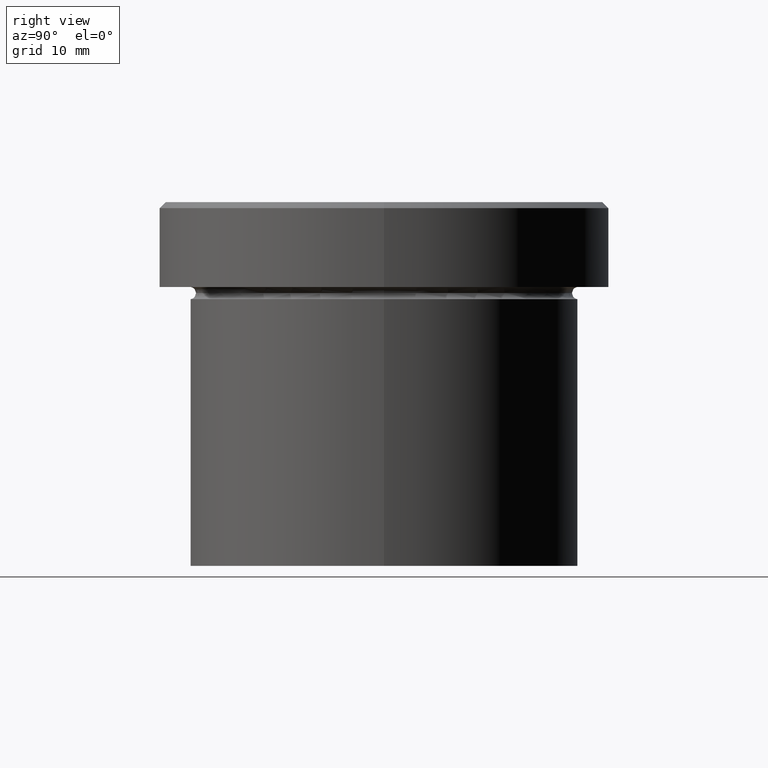
[diagram: clean part render]
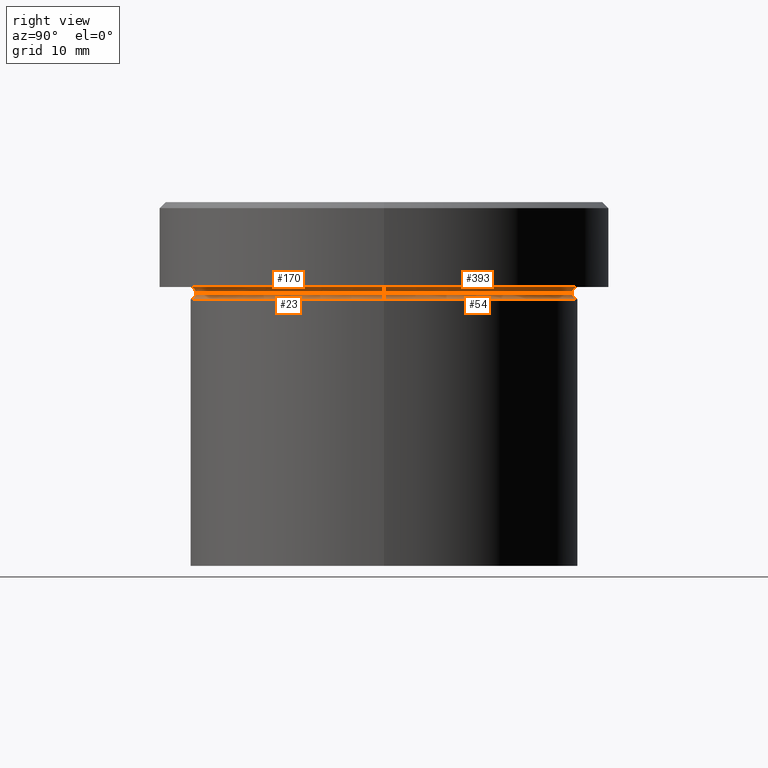
[diagram: same view with one multi-face feature highlighted, each face labeled with its STEP entity id]
A machine part, right view. The highlighted faces form ONE feature: a constant-radius fillet chain: 4 tangent blend faces with common blend radius 0.5 mm. The faces share edges in the B-rep.
Their STEP definitions:
[1] entity #393 (Torus):
#13 = DIRECTION ( 'NONE',  ( 1.000000000000000000, 0.000000000000000000, 0.000000000000000000 ) ) ;
#24 = VERTEX_POINT ( 'NONE', #344 ) ;
#42 = DIRECTION ( 'NONE',  ( -0.000000000000000000, -0.000000000000000000, 1.000000000000000000 ) ) ;
#50 = VERTEX_POINT ( 'NONE', #378 ) ;
#51 = EDGE_CURVE ( 'NONE', #24, #50, #219, .T. ) ;
#52 = CARTESIAN_POINT ( 'NONE',  ( 0.000000000000000000, 0.000000000000000000, -7.500000000000000000 ) ) ;
#55 = CIRCLE ( 'NONE', #282, 16.00000000000000000 ) ;
#71 = TOROIDAL_SURFACE ( 'NONE', #87, 16.00000000000000000, 0.5000000000000000000 ) ;
#86 = AXIS2_PLACEMENT_3D ( 'NONE', #161, #134, #376 ) ;
#87 = AXIS2_PLACEMENT_3D ( 'NONE', #52, #98, #123 ) ;
#98 = DIRECTION ( 'NONE',  ( 0.000000000000000000, 0.000000000000000000, -1.000000000000000000 ) ) ;
#107 = VERTEX_POINT ( 'NONE', #132 ) ;
#116 = CARTESIAN_POINT ( 'NONE',  ( 16.00000000000000000, 1.959434878635765131E-15, -7.500000000000000000 ) ) ;
#123 = DIRECTION ( 'NONE',  ( -1.000000000000000000, 0.000000000000000000, 0.000000000000000000 ) ) ;
#132 = CARTESIAN_POINT ( 'NONE',  ( 16.00000000000000000, 1.959434878635765131E-15, -6.999999999999999112 ) ) ;
#134 = DIRECTION ( 'NONE',  ( -0.000000000000000000, -1.000000000000000000, -0.000000000000000000 ) ) ;
#136 = CIRCLE ( 'NONE', #379, 15.50000000000000000 ) ;
#161 = CARTESIAN_POINT ( 'NONE',  ( -16.00000000000000000, 0.000000000000000000, -7.500000000000000000 ) ) ;
#195 = DIRECTION ( 'NONE',  ( -1.224646799147353207E-16, 1.000000000000000000, 0.000000000000000000 ) ) ;
#204 = AXIS2_PLACEMENT_3D ( 'NONE', #116, #195, #288 ) ;
#205 = ORIENTED_EDGE ( 'NONE', *, *, #298, .F. ) ;
#206 = ORIENTED_EDGE ( 'NONE', *, *, #273, .T. ) ;
#214 = FACE_OUTER_BOUND ( 'NONE', #368, .T. ) ;
#219 = CIRCLE ( 'NONE', #86, 0.5000000000000004441 ) ;
#226 = DIRECTION ( 'NONE',  ( -0.000000000000000000, -0.000000000000000000, 1.000000000000000000 ) ) ;
#258 = CARTESIAN_POINT ( 'NONE',  ( 0.000000000000000000, 0.000000000000000000, -7.500000000000000000 ) ) ;
#259 = ORIENTED_EDGE ( 'NONE', *, *, #305, .F. ) ;
#262 = DIRECTION ( 'NONE',  ( -1.000000000000000000, 0.000000000000000000, 0.000000000000000000 ) ) ;
#273 = EDGE_CURVE ( 'NONE', #325, #24, #136, .T. ) ;
#282 = AXIS2_PLACEMENT_3D ( 'NONE', #361, #226, #262 ) ;
#288 = DIRECTION ( 'NONE',  ( -1.000000000000000000, -1.224646799147349509E-16, 0.000000000000000000 ) ) ;
#298 = EDGE_CURVE ( 'NONE', #107, #50, #55, .T. ) ;
#305 = EDGE_CURVE ( 'NONE', #325, #107, #347, .T. ) ;
#325 = VERTEX_POINT ( 'NONE', #356 ) ;
#344 = CARTESIAN_POINT ( 'NONE',  ( -15.50000000000000000, 1.928818708657081344E-15, -7.500000000000000000 ) ) ;
#347 = CIRCLE ( 'NONE', #204, 0.5000000000000004441 ) ;
#356 = CARTESIAN_POINT ( 'NONE',  ( 15.50000000000000000, 0.000000000000000000, -7.500000000000000000 ) ) ;
#361 = CARTESIAN_POINT ( 'NONE',  ( 0.000000000000000000, 0.000000000000000000, -6.999999999999999112 ) ) ;
#368 = EDGE_LOOP ( 'NONE', ( #259, #206, #395, #205 ) ) ;
#376 = DIRECTION ( 'NONE',  ( 0.000000000000000000, 0.000000000000000000, -1.000000000000000000 ) ) ;
#378 = CARTESIAN_POINT ( 'NONE',  ( -16.00000000000000000, 0.000000000000000000, -6.999999999999999112 ) ) ;
#379 = AXIS2_PLACEMENT_3D ( 'NONE', #258, #42, #13 ) ;
#393 = ADVANCED_FACE ( 'NONE', ( #214 ), #71, .F. ) ;
#395 = ORIENTED_EDGE ( 'NONE', *, *, #51, .T. ) ;
[2] entity #54 (Torus):
#8 = DIRECTION ( 'NONE',  ( 0.000000000000000000, 0.000000000000000000, -1.000000000000000000 ) ) ;
#13 = DIRECTION ( 'NONE',  ( 1.000000000000000000, 0.000000000000000000, 0.000000000000000000 ) ) ;
#24 = VERTEX_POINT ( 'NONE', #344 ) ;
#28 = FACE_OUTER_BOUND ( 'NONE', #392, .T. ) ;
#31 = DIRECTION ( 'NONE',  ( 1.000000000000000000, 0.000000000000000000, 0.000000000000000000 ) ) ;
#38 = CIRCLE ( 'NONE', #236, 0.5000000000000004441 ) ;
#42 = DIRECTION ( 'NONE',  ( -0.000000000000000000, -0.000000000000000000, 1.000000000000000000 ) ) ;
#44 = CARTESIAN_POINT ( 'NONE',  ( -16.00000000000000000, 1.959434878635765131E-15, -7.500000000000000000 ) ) ;
#54 = ADVANCED_FACE ( 'NONE', ( #28 ), #210, .F. ) ;
#77 = AXIS2_PLACEMENT_3D ( 'NONE', #44, #151, #391 ) ;
#78 = CIRCLE ( 'NONE', #112, 16.00000000000000000 ) ;
#92 = ORIENTED_EDGE ( 'NONE', *, *, #319, .T. ) ;
#112 = AXIS2_PLACEMENT_3D ( 'NONE', #260, #290, #321 ) ;
#114 = CARTESIAN_POINT ( 'NONE',  ( 16.00000000000000000, 0.000000000000000000, -7.500000000000000000 ) ) ;
#117 = ORIENTED_EDGE ( 'NONE', *, *, #273, .F. ) ;
#136 = CIRCLE ( 'NONE', #379, 15.50000000000000000 ) ;
#151 = DIRECTION ( 'NONE',  ( 1.224646799147353207E-16, 1.000000000000000000, 0.000000000000000000 ) ) ;
#156 = VERTEX_POINT ( 'NONE', #163 ) ;
#163 = CARTESIAN_POINT ( 'NONE',  ( 16.00000000000000000, 0.000000000000000000, -8.000000000000000000 ) ) ;
#182 = EDGE_CURVE ( 'NONE', #325, #156, #38, .T. ) ;
#210 = TOROIDAL_SURFACE ( 'NONE', #280, 16.00000000000000000, 0.5000000000000000000 ) ;
#215 = EDGE_CURVE ( 'NONE', #24, #270, #251, .T. ) ;
#236 = AXIS2_PLACEMENT_3D ( 'NONE', #114, #324, #8 ) ;
#242 = DIRECTION ( 'NONE',  ( -0.000000000000000000, -0.000000000000000000, 1.000000000000000000 ) ) ;
#251 = CIRCLE ( 'NONE', #77, 0.5000000000000004441 ) ;
#258 = CARTESIAN_POINT ( 'NONE',  ( 0.000000000000000000, 0.000000000000000000, -7.500000000000000000 ) ) ;
#260 = CARTESIAN_POINT ( 'NONE',  ( 0.000000000000000000, 0.000000000000000000, -8.000000000000000000 ) ) ;
#270 = VERTEX_POINT ( 'NONE', #327 ) ;
#273 = EDGE_CURVE ( 'NONE', #325, #24, #136, .T. ) ;
#280 = AXIS2_PLACEMENT_3D ( 'NONE', #406, #242, #31 ) ;
#290 = DIRECTION ( 'NONE',  ( -0.000000000000000000, -0.000000000000000000, 1.000000000000000000 ) ) ;
#319 = EDGE_CURVE ( 'NONE', #156, #270, #78, .T. ) ;
#321 = DIRECTION ( 'NONE',  ( 1.000000000000000000, 0.000000000000000000, 0.000000000000000000 ) ) ;
#324 = DIRECTION ( 'NONE',  ( 0.000000000000000000, -1.000000000000000000, 0.000000000000000000 ) ) ;
#325 = VERTEX_POINT ( 'NONE', #356 ) ;
#327 = CARTESIAN_POINT ( 'NONE',  ( -16.00000000000000000, 1.959434878635765131E-15, -8.000000000000000000 ) ) ;
#334 = ORIENTED_EDGE ( 'NONE', *, *, #215, .F. ) ;
#344 = CARTESIAN_POINT ( 'NONE',  ( -15.50000000000000000, 1.928818708657081344E-15, -7.500000000000000000 ) ) ;
#356 = CARTESIAN_POINT ( 'NONE',  ( 15.50000000000000000, 0.000000000000000000, -7.500000000000000000 ) ) ;
#379 = AXIS2_PLACEMENT_3D ( 'NONE', #258, #42, #13 ) ;
#388 = ORIENTED_EDGE ( 'NONE', *, *, #182, .T. ) ;
#391 = DIRECTION ( 'NONE',  ( -1.000000000000000000, 1.224646799147349509E-16, 0.000000000000000000 ) ) ;
#392 = EDGE_LOOP ( 'NONE', ( #334, #117, #388, #92 ) ) ;
#406 = CARTESIAN_POINT ( 'NONE',  ( 0.000000000000000000, 0.000000000000000000, -7.500000000000000000 ) ) ;
[3] entity #23 (Torus):
#8 = DIRECTION ( 'NONE',  ( 0.000000000000000000, 0.000000000000000000, -1.000000000000000000 ) ) ;
#10 = AXIS2_PLACEMENT_3D ( 'NONE', #164, #64, #68 ) ;
#11 = EDGE_CURVE ( 'NONE', #24, #325, #162, .T. ) ;
#23 = ADVANCED_FACE ( 'NONE', ( #94 ), #95, .F. ) ;
#24 = VERTEX_POINT ( 'NONE', #344 ) ;
#38 = CIRCLE ( 'NONE', #236, 0.5000000000000004441 ) ;
#44 = CARTESIAN_POINT ( 'NONE',  ( -16.00000000000000000, 1.959434878635765131E-15, -7.500000000000000000 ) ) ;
#53 = ORIENTED_EDGE ( 'NONE', *, *, #182, .F. ) ;
#64 = DIRECTION ( 'NONE',  ( -0.000000000000000000, -0.000000000000000000, 1.000000000000000000 ) ) ;
#68 = DIRECTION ( 'NONE',  ( 1.000000000000000000, 0.000000000000000000, 0.000000000000000000 ) ) ;
#77 = AXIS2_PLACEMENT_3D ( 'NONE', #44, #151, #391 ) ;
#81 = CARTESIAN_POINT ( 'NONE',  ( 0.000000000000000000, 0.000000000000000000, -7.500000000000000000 ) ) ;
#84 = CARTESIAN_POINT ( 'NONE',  ( 0.000000000000000000, 0.000000000000000000, -8.000000000000000000 ) ) ;
#94 = FACE_OUTER_BOUND ( 'NONE', #124, .T. ) ;
#95 = TOROIDAL_SURFACE ( 'NONE', #10, 16.00000000000000000, 0.5000000000000000000 ) ;
#111 = DIRECTION ( 'NONE',  ( -0.000000000000000000, -0.000000000000000000, 1.000000000000000000 ) ) ;
#114 = CARTESIAN_POINT ( 'NONE',  ( 16.00000000000000000, 0.000000000000000000, -7.500000000000000000 ) ) ;
#124 = EDGE_LOOP ( 'NONE', ( #335, #291, #207, #53 ) ) ;
#151 = DIRECTION ( 'NONE',  ( 1.224646799147353207E-16, 1.000000000000000000, 0.000000000000000000 ) ) ;
#154 = DIRECTION ( 'NONE',  ( 1.000000000000000000, 0.000000000000000000, 0.000000000000000000 ) ) ;
#156 = VERTEX_POINT ( 'NONE', #163 ) ;
#162 = CIRCLE ( 'NONE', #341, 15.50000000000000000 ) ;
#163 = CARTESIAN_POINT ( 'NONE',  ( 16.00000000000000000, 0.000000000000000000, -8.000000000000000000 ) ) ;
#164 = CARTESIAN_POINT ( 'NONE',  ( 0.000000000000000000, 0.000000000000000000, -7.500000000000000000 ) ) ;
#171 = DIRECTION ( 'NONE',  ( 1.000000000000000000, 0.000000000000000000, 0.000000000000000000 ) ) ;
#174 = CIRCLE ( 'NONE', #405, 16.00000000000000000 ) ;
#182 = EDGE_CURVE ( 'NONE', #325, #156, #38, .T. ) ;
#207 = ORIENTED_EDGE ( 'NONE', *, *, #314, .T. ) ;
#215 = EDGE_CURVE ( 'NONE', #24, #270, #251, .T. ) ;
#236 = AXIS2_PLACEMENT_3D ( 'NONE', #114, #324, #8 ) ;
#251 = CIRCLE ( 'NONE', #77, 0.5000000000000004441 ) ;
#263 = DIRECTION ( 'NONE',  ( -0.000000000000000000, -0.000000000000000000, 1.000000000000000000 ) ) ;
#270 = VERTEX_POINT ( 'NONE', #327 ) ;
#291 = ORIENTED_EDGE ( 'NONE', *, *, #215, .T. ) ;
#314 = EDGE_CURVE ( 'NONE', #270, #156, #174, .T. ) ;
#324 = DIRECTION ( 'NONE',  ( 0.000000000000000000, -1.000000000000000000, 0.000000000000000000 ) ) ;
#325 = VERTEX_POINT ( 'NONE', #356 ) ;
#327 = CARTESIAN_POINT ( 'NONE',  ( -16.00000000000000000, 1.959434878635765131E-15, -8.000000000000000000 ) ) ;
#335 = ORIENTED_EDGE ( 'NONE', *, *, #11, .F. ) ;
#341 = AXIS2_PLACEMENT_3D ( 'NONE', #81, #263, #154 ) ;
#344 = CARTESIAN_POINT ( 'NONE',  ( -15.50000000000000000, 1.928818708657081344E-15, -7.500000000000000000 ) ) ;
#356 = CARTESIAN_POINT ( 'NONE',  ( 15.50000000000000000, 0.000000000000000000, -7.500000000000000000 ) ) ;
#391 = DIRECTION ( 'NONE',  ( -1.000000000000000000, 1.224646799147349509E-16, 0.000000000000000000 ) ) ;
#405 = AXIS2_PLACEMENT_3D ( 'NONE', #84, #111, #171 ) ;
[4] entity #170 (Torus):
#11 = EDGE_CURVE ( 'NONE', #24, #325, #162, .T. ) ;
#24 = VERTEX_POINT ( 'NONE', #344 ) ;
#30 = DIRECTION ( 'NONE',  ( -0.000000000000000000, -0.000000000000000000, 1.000000000000000000 ) ) ;
#50 = VERTEX_POINT ( 'NONE', #378 ) ;
#51 = EDGE_CURVE ( 'NONE', #24, #50, #219, .T. ) ;
#81 = CARTESIAN_POINT ( 'NONE',  ( 0.000000000000000000, 0.000000000000000000, -7.500000000000000000 ) ) ;
#83 = EDGE_LOOP ( 'NONE', ( #345, #256, #300, #223 ) ) ;
#86 = AXIS2_PLACEMENT_3D ( 'NONE', #161, #134, #376 ) ;
#99 = DIRECTION ( 'NONE',  ( -1.000000000000000000, 0.000000000000000000, 0.000000000000000000 ) ) ;
#107 = VERTEX_POINT ( 'NONE', #132 ) ;
#116 = CARTESIAN_POINT ( 'NONE',  ( 16.00000000000000000, 1.959434878635765131E-15, -7.500000000000000000 ) ) ;
#126 = CARTESIAN_POINT ( 'NONE',  ( 0.000000000000000000, 0.000000000000000000, -6.999999999999999112 ) ) ;
#132 = CARTESIAN_POINT ( 'NONE',  ( 16.00000000000000000, 1.959434878635765131E-15, -6.999999999999999112 ) ) ;
#134 = DIRECTION ( 'NONE',  ( -0.000000000000000000, -1.000000000000000000, -0.000000000000000000 ) ) ;
#141 = CIRCLE ( 'NONE', #292, 16.00000000000000000 ) ;
#145 = EDGE_CURVE ( 'NONE', #50, #107, #141, .T. ) ;
#154 = DIRECTION ( 'NONE',  ( 1.000000000000000000, 0.000000000000000000, 0.000000000000000000 ) ) ;
#161 = CARTESIAN_POINT ( 'NONE',  ( -16.00000000000000000, 0.000000000000000000, -7.500000000000000000 ) ) ;
#162 = CIRCLE ( 'NONE', #341, 15.50000000000000000 ) ;
#170 = ADVANCED_FACE ( 'NONE', ( #211 ), #364, .F. ) ;
#187 = AXIS2_PLACEMENT_3D ( 'NONE', #244, #342, #190 ) ;
#190 = DIRECTION ( 'NONE',  ( -1.000000000000000000, 0.000000000000000000, 0.000000000000000000 ) ) ;
#195 = DIRECTION ( 'NONE',  ( -1.224646799147353207E-16, 1.000000000000000000, 0.000000000000000000 ) ) ;
#204 = AXIS2_PLACEMENT_3D ( 'NONE', #116, #195, #288 ) ;
#211 = FACE_OUTER_BOUND ( 'NONE', #83, .T. ) ;
#219 = CIRCLE ( 'NONE', #86, 0.5000000000000004441 ) ;
#223 = ORIENTED_EDGE ( 'NONE', *, *, #51, .F. ) ;
#244 = CARTESIAN_POINT ( 'NONE',  ( 0.000000000000000000, 0.000000000000000000, -7.500000000000000000 ) ) ;
#256 = ORIENTED_EDGE ( 'NONE', *, *, #305, .T. ) ;
#263 = DIRECTION ( 'NONE',  ( -0.000000000000000000, -0.000000000000000000, 1.000000000000000000 ) ) ;
#288 = DIRECTION ( 'NONE',  ( -1.000000000000000000, -1.224646799147349509E-16, 0.000000000000000000 ) ) ;
#292 = AXIS2_PLACEMENT_3D ( 'NONE', #126, #30, #99 ) ;
#300 = ORIENTED_EDGE ( 'NONE', *, *, #145, .F. ) ;
#305 = EDGE_CURVE ( 'NONE', #325, #107, #347, .T. ) ;
#325 = VERTEX_POINT ( 'NONE', #356 ) ;
#341 = AXIS2_PLACEMENT_3D ( 'NONE', #81, #263, #154 ) ;
#342 = DIRECTION ( 'NONE',  ( 0.000000000000000000, 0.000000000000000000, -1.000000000000000000 ) ) ;
#344 = CARTESIAN_POINT ( 'NONE',  ( -15.50000000000000000, 1.928818708657081344E-15, -7.500000000000000000 ) ) ;
#345 = ORIENTED_EDGE ( 'NONE', *, *, #11, .T. ) ;
#347 = CIRCLE ( 'NONE', #204, 0.5000000000000004441 ) ;
#356 = CARTESIAN_POINT ( 'NONE',  ( 15.50000000000000000, 0.000000000000000000, -7.500000000000000000 ) ) ;
#364 = TOROIDAL_SURFACE ( 'NONE', #187, 16.00000000000000000, 0.5000000000000000000 ) ;
#376 = DIRECTION ( 'NONE',  ( 0.000000000000000000, 0.000000000000000000, -1.000000000000000000 ) ) ;
#378 = CARTESIAN_POINT ( 'NONE',  ( -16.00000000000000000, 0.000000000000000000, -6.999999999999999112 ) ) ;